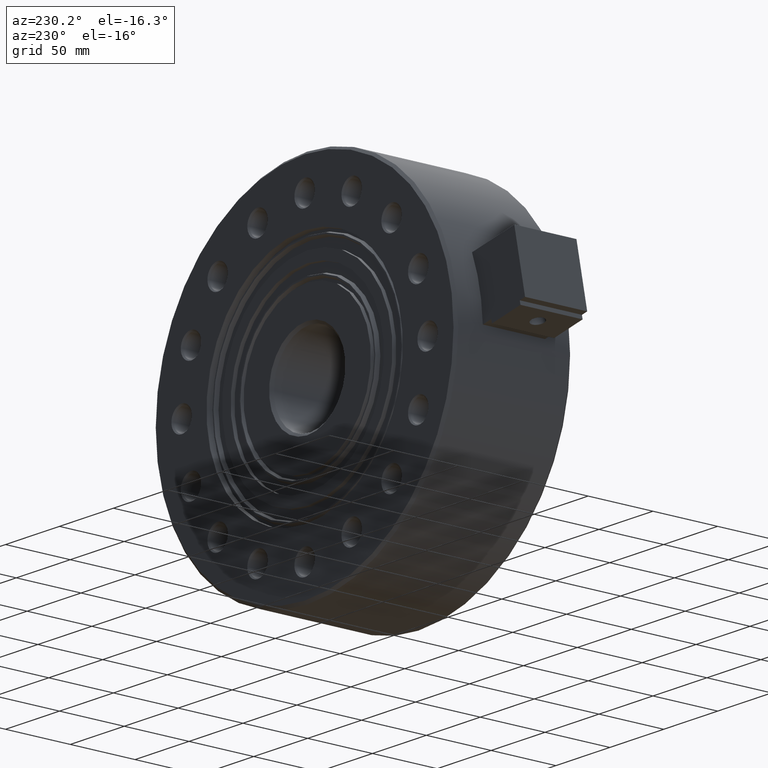
[diagram: clean part render]
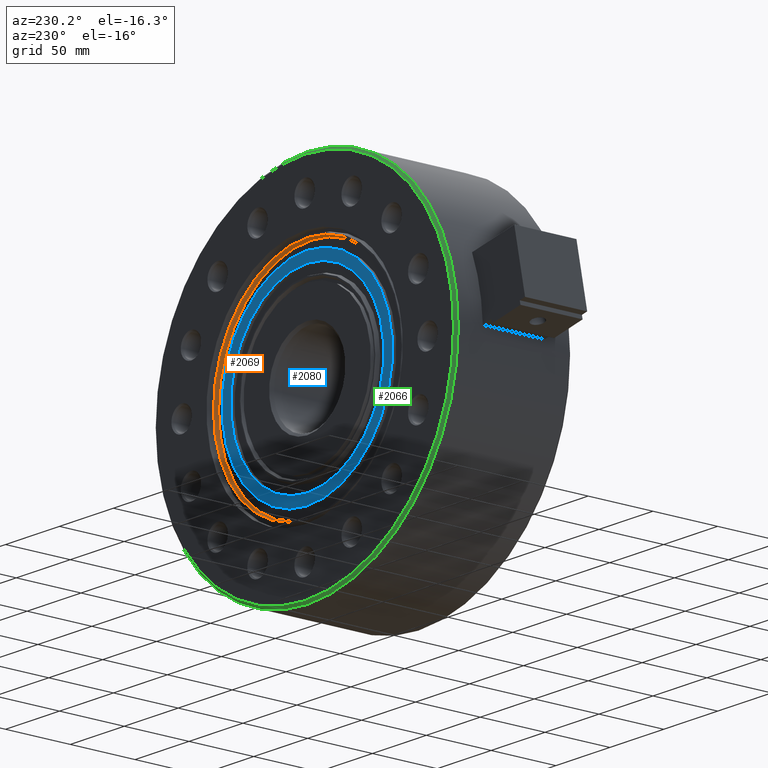
[diagram: same view with three faces highlighted in distinct colors, each labeled with its STEP entity id]
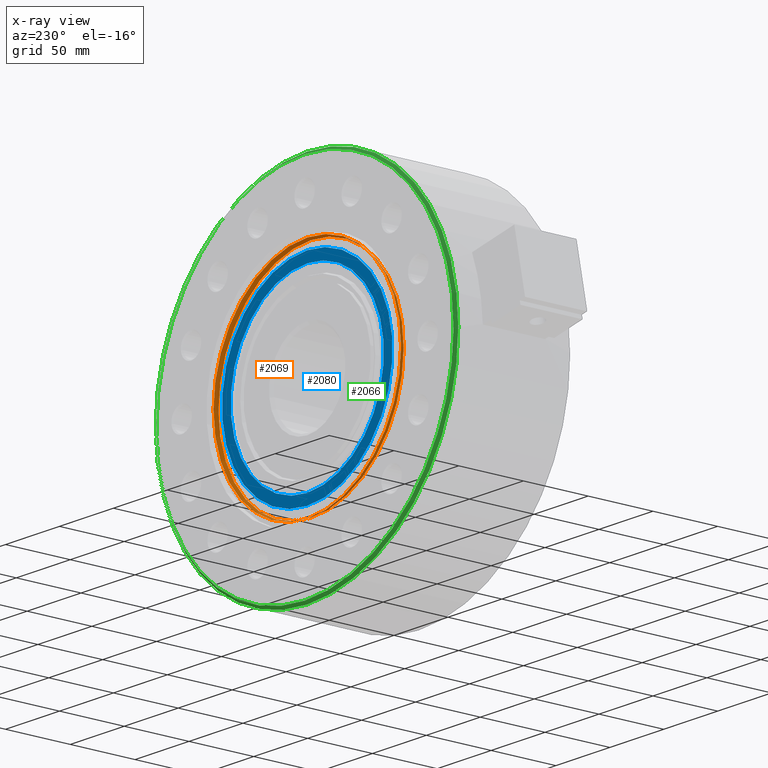
[diagram: x-ray of the same camera — body ghosted, the three highlighted faces saturated]
A machine part, auxiliary view with three faces highlighted in distinct colors.
The next image is the same camera in x-ray (body ghosted, the three faces saturated) — at least one of them is partly hidden behind the body in this view.
Their STEP definitions:

[orange] entity #2069 — the highlighted conical surface has half-angle 20 deg.
#188=FACE_OUTER_BOUND('',#289,.T.);
#289=EDGE_LOOP('',(#1719,#1720,#1721,#1722,#1723,#1724));
#442=LINE('',#3676,#541);
#541=VECTOR('',#3009,86.9080892972014);
#764=CIRCLE('',#2373,85.8161785944028);
#765=CIRCLE('',#2374,86.9080892972014);
#766=CIRCLE('',#2375,86.9080892972014);
#767=CIRCLE('',#2376,85.8161785944028);
#978=VERTEX_POINT('',#3672);
#979=VERTEX_POINT('',#3673);
#980=VERTEX_POINT('',#3675);
#981=VERTEX_POINT('',#3677);
#1274=EDGE_CURVE('',#978,#979,#764,.T.);
#1275=EDGE_CURVE('',#979,#980,#442,.T.);
#1276=EDGE_CURVE('',#981,#980,#765,.T.);
#1277=EDGE_CURVE('',#980,#981,#766,.T.);
#1278=EDGE_CURVE('',#979,#978,#767,.T.);
#1719=ORIENTED_EDGE('',*,*,#1274,.T.);
#1720=ORIENTED_EDGE('',*,*,#1275,.T.);
#1721=ORIENTED_EDGE('',*,*,#1276,.F.);
#1722=ORIENTED_EDGE('',*,*,#1277,.F.);
#1723=ORIENTED_EDGE('',*,*,#1275,.F.);
#1724=ORIENTED_EDGE('',*,*,#1278,.T.);
#2002=CONICAL_SURFACE('',#2372,86.9080892972014,0.349065850398863);
#2069=ADVANCED_FACE('',(#188),#2002,.F.);
#2372=AXIS2_PLACEMENT_3D('',#3671,#3005,#3006);
#2373=AXIS2_PLACEMENT_3D('',#3674,#3007,#3008);
#2374=AXIS2_PLACEMENT_3D('',#3678,#3010,#3011);
#2375=AXIS2_PLACEMENT_3D('',#3679,#3012,#3013);
#2376=AXIS2_PLACEMENT_3D('',#3680,#3014,#3015);
#3005=DIRECTION('center_axis',(0.,1.,0.));
#3006=DIRECTION('ref_axis',(0.,0.,1.));
#3007=DIRECTION('center_axis',(0.,-1.,0.));
#3008=DIRECTION('ref_axis',(0.,0.,-1.));
#3009=DIRECTION('',(-4.18853873767696E-17,0.939692620785909,-0.342020143325666));
#3010=DIRECTION('center_axis',(0.,-1.,0.));
#3011=DIRECTION('ref_axis',(0.,0.,-1.));
#3012=DIRECTION('center_axis',(0.,-1.,0.));
#3013=DIRECTION('ref_axis',(0.,0.,-1.));
#3014=DIRECTION('center_axis',(0.,-1.,0.));
#3015=DIRECTION('ref_axis',(0.,0.,-1.));
#3671=CARTESIAN_POINT('Origin',(-1.58897922189369E-14,67.,0.));
#3672=CARTESIAN_POINT('',(-1.58897922189369E-14,64.,85.8161785944028));
#3673=CARTESIAN_POINT('',(-2.63992430620062E-14,64.,-85.8161785944028));
#3674=CARTESIAN_POINT('Origin',(-1.58897922189369E-14,64.,0.));
#3675=CARTESIAN_POINT('',(-2.65329635567199E-14,67.,-86.9080892972014));
#3676=CARTESIAN_POINT('',(-2.65329635567199E-14,67.,-86.9080892972014));
#3677=CARTESIAN_POINT('',(-1.58897922189369E-14,67.,86.9080892972014));
#3678=CARTESIAN_POINT('Origin',(-1.58897922189369E-14,67.,0.));
#3679=CARTESIAN_POINT('Origin',(-1.58897922189369E-14,67.,0.));
#3680=CARTESIAN_POINT('Origin',(-1.58897922189369E-14,64.,0.));

[blue] entity #2080 — the highlighted planar face has unit normal (0, 1, 0).
#19=PLANE('',#2409);
#50=FACE_BOUND('',#306,.T.);
#199=FACE_OUTER_BOUND('',#305,.T.);
#305=EDGE_LOOP('',(#1781,#1782));
#306=EDGE_LOOP('',(#1783,#1784));
#770=CIRCLE('',#2380,79.);
#771=CIRCLE('',#2381,79.);
#772=CIRCLE('',#2383,71.);
#773=CIRCLE('',#2384,71.);
#984=VERTEX_POINT('',#3686);
#985=VERTEX_POINT('',#3688);
#986=VERTEX_POINT('',#3692);
#987=VERTEX_POINT('',#3693);
#1282=EDGE_CURVE('',#984,#985,#770,.T.);
#1283=EDGE_CURVE('',#985,#984,#771,.T.);
#1284=EDGE_CURVE('',#986,#987,#772,.T.);
#1285=EDGE_CURVE('',#987,#986,#773,.T.);
#1781=ORIENTED_EDGE('',*,*,#1283,.F.);
#1782=ORIENTED_EDGE('',*,*,#1282,.F.);
#1783=ORIENTED_EDGE('',*,*,#1284,.T.);
#1784=ORIENTED_EDGE('',*,*,#1285,.T.);
#2080=ADVANCED_FACE('',(#199,#50),#19,.T.);
#2380=AXIS2_PLACEMENT_3D('',#3689,#3023,#3024);
#2381=AXIS2_PLACEMENT_3D('',#3690,#3025,#3026);
#2383=AXIS2_PLACEMENT_3D('',#3694,#3029,#3030);
#2384=AXIS2_PLACEMENT_3D('',#3695,#3031,#3032);
#2409=AXIS2_PLACEMENT_3D('',#3745,#3088,#3089);
#3023=DIRECTION('center_axis',(0.,-1.,0.));
#3024=DIRECTION('ref_axis',(0.,0.,-1.));
#3025=DIRECTION('center_axis',(0.,-1.,0.));
#3026=DIRECTION('ref_axis',(0.,0.,-1.));
#3029=DIRECTION('center_axis',(0.,-1.,0.));
#3030=DIRECTION('ref_axis',(0.,0.,-1.));
#3031=DIRECTION('center_axis',(0.,-1.,0.));
#3032=DIRECTION('ref_axis',(0.,0.,-1.));
#3088=DIRECTION('center_axis',(0.,1.,0.));
#3089=DIRECTION('ref_axis',(0.,0.,1.));
#3686=CARTESIAN_POINT('',(-2.5564501932201E-14,67.,79.));
#3688=CARTESIAN_POINT('',(-1.58897922189369E-14,67.,-79.));
#3689=CARTESIAN_POINT('Origin',(-1.58897922189369E-14,67.,0.));
#3690=CARTESIAN_POINT('Origin',(-1.58897922189369E-14,67.,0.));
#3692=CARTESIAN_POINT('',(-1.58897922189369E-14,67.,-71.));
#3693=CARTESIAN_POINT('',(-2.45847844928831E-14,67.,71.));
#3694=CARTESIAN_POINT('Origin',(-1.58897922189369E-14,67.,0.));
#3695=CARTESIAN_POINT('Origin',(-1.58897922189369E-14,67.,0.));
#3745=CARTESIAN_POINT('Origin',(71.,67.,0.));

[green] entity #2066 — the highlighted conical surface has half-angle 45 deg.
#185=FACE_OUTER_BOUND('',#286,.T.);
#286=EDGE_LOOP('',(#1701,#1702,#1703,#1704,#1705,#1706));
#439=LINE('',#3647,#538);
#538=VECTOR('',#2978,140.);
#752=CIRCLE('',#2358,140.);
#753=CIRCLE('',#2359,140.);
#754=CIRCLE('',#2360,138.);
#755=CIRCLE('',#2361,138.);
#966=VERTEX_POINT('',#3642);
#967=VERTEX_POINT('',#3643);
#968=VERTEX_POINT('',#3646);
#969=VERTEX_POINT('',#3648);
#1259=EDGE_CURVE('',#966,#967,#752,.T.);
#1260=EDGE_CURVE('',#967,#966,#753,.T.);
#1261=EDGE_CURVE('',#967,#968,#439,.T.);
#1262=EDGE_CURVE('',#968,#969,#754,.T.);
#1263=EDGE_CURVE('',#969,#968,#755,.T.);
#1701=ORIENTED_EDGE('',*,*,#1259,.F.);
#1702=ORIENTED_EDGE('',*,*,#1260,.F.);
#1703=ORIENTED_EDGE('',*,*,#1261,.T.);
#1704=ORIENTED_EDGE('',*,*,#1262,.T.);
#1705=ORIENTED_EDGE('',*,*,#1263,.T.);
#1706=ORIENTED_EDGE('',*,*,#1261,.F.);
#2000=CONICAL_SURFACE('',#2357,140.,0.785398163397448);
#2066=ADVANCED_FACE('',(#185),#2000,.T.);
#2357=AXIS2_PLACEMENT_3D('',#3641,#2972,#2973);
#2358=AXIS2_PLACEMENT_3D('',#3644,#2974,#2975);
#2359=AXIS2_PLACEMENT_3D('',#3645,#2976,#2977);
#2360=AXIS2_PLACEMENT_3D('',#3649,#2979,#2980);
#2361=AXIS2_PLACEMENT_3D('',#3650,#2981,#2982);
#2972=DIRECTION('center_axis',(0.,-1.,0.));
#2973=DIRECTION('ref_axis',(0.,0.,-1.));
#2974=DIRECTION('center_axis',(0.,-1.,0.));
#2975=DIRECTION('ref_axis',(0.,0.,-1.));
#2976=DIRECTION('center_axis',(0.,-1.,0.));
#2977=DIRECTION('ref_axis',(0.,0.,-1.));
#2978=DIRECTION('',(8.65956056235493E-17,0.707106781186548,-0.707106781186548));
#2979=DIRECTION('center_axis',(0.,-1.,0.));
#2980=DIRECTION('ref_axis',(0.,0.,-1.));
#2981=DIRECTION('center_axis',(0.,-1.,0.));
#2982=DIRECTION('ref_axis',(0.,0.,-1.));
#3641=CARTESIAN_POINT('Origin',(-1.58897922189369E-14,67.,0.));
#3642=CARTESIAN_POINT('',(-1.58897922189369E-14,67.,-140.));
#3643=CARTESIAN_POINT('',(-3.30348474069999E-14,67.,140.));
#3644=CARTESIAN_POINT('Origin',(-1.58897922189369E-14,67.,0.));
#3645=CARTESIAN_POINT('Origin',(-1.58897922189369E-14,67.,0.));
#3646=CARTESIAN_POINT('',(-3.27899180471704E-14,69.,138.));
#3647=CARTESIAN_POINT('',(-3.30348474069999E-14,67.,140.));
#3648=CARTESIAN_POINT('',(-1.58897922189369E-14,69.,-138.));
#3649=CARTESIAN_POINT('Origin',(-1.58897922189369E-14,69.,0.));
#3650=CARTESIAN_POINT('Origin',(-1.58897922189369E-14,69.,0.));